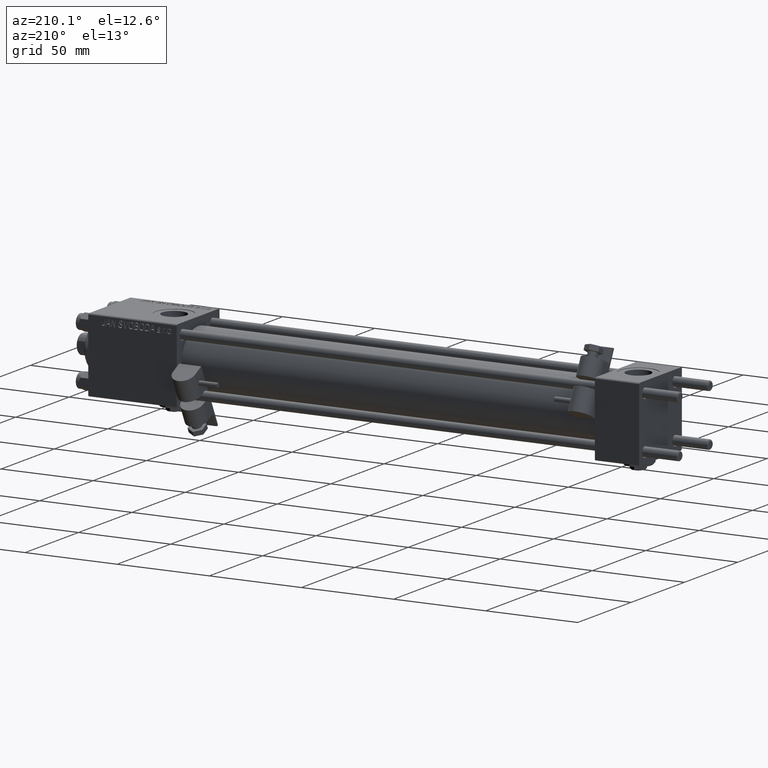
[diagram: clean part render]
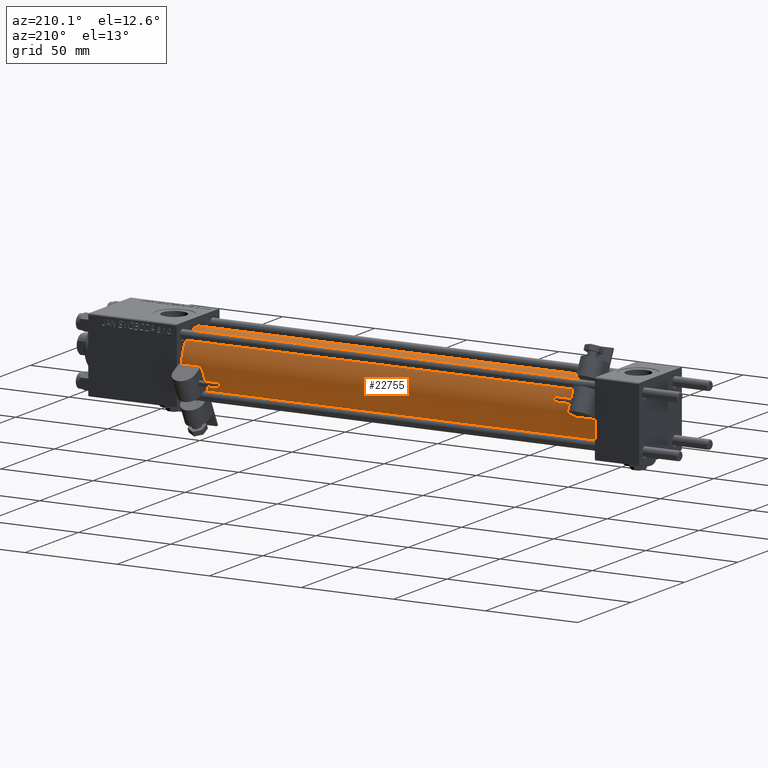
[diagram: same view with one face highlighted and labeled with its STEP entity id]
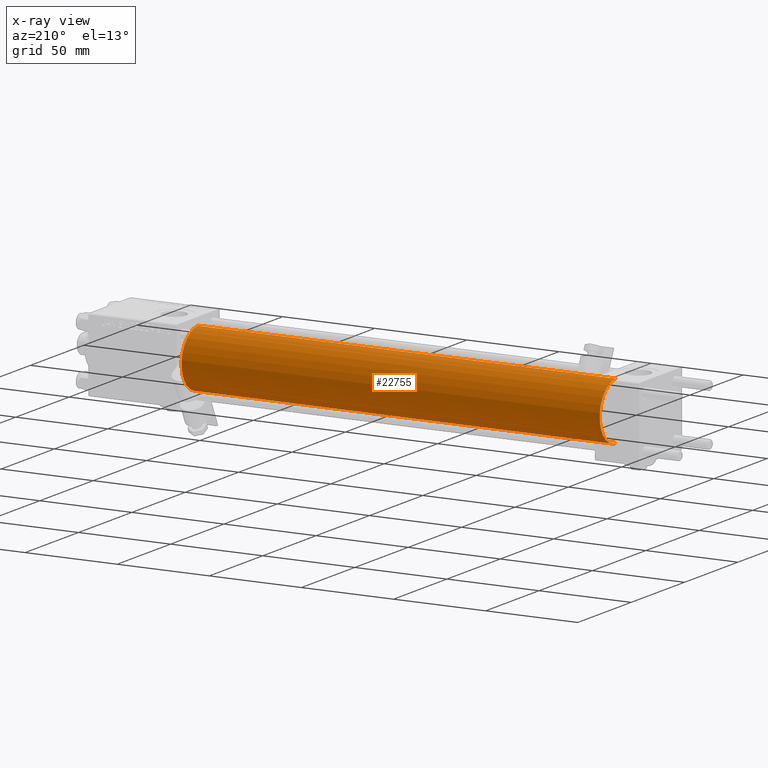
[diagram: x-ray of the same camera — body ghosted, the highlighted face saturated]
A machine part, auxiliary view. The second image highlights one B-rep face of the part: STEP entity #22755.
The next image is the same camera in x-ray: the body ghosted, the highlighted face saturated — about 0% of this face is hidden behind the body in this view.
In plain terms, the highlighted cylindrical surface (edge-blend (fillet) strip) has radius 15.5 mm, axis along (-1, -0, -0).
Its self-contained STEP definition (entity closure, byte-faithful):
#4973 = VERTEX_POINT ( 'NONE', #10799 ) ;
#8512 = VERTEX_POINT ( 'NONE', #28472 ) ;
#9592 = CARTESIAN_POINT ( 'NONE',  ( 251.0000000000000000, 0.000000000000000000, 15.50000000000000000 ) ) ;
#10280 = EDGE_CURVE ( 'NONE', #48518, #8512, #37662, .T. ) ;
#10799 = CARTESIAN_POINT ( 'NONE',  ( 23.99999999999999289, 1.898202538678397163E-15, -15.50000000000000000 ) ) ;
#10968 = DIRECTION ( 'NONE',  ( 1.000000000000000000, 0.000000000000000000, 0.000000000000000000 ) ) ;
#12340 = EDGE_CURVE ( 'NONE', #4973, #8512, #46383, .T. ) ;
#14206 = AXIS2_PLACEMENT_3D ( 'NONE', #17592, #46179, #22381 ) ;
#14679 = DIRECTION ( 'NONE',  ( 0.000000000000000000, 0.000000000000000000, -1.000000000000000000 ) ) ;
#14745 = EDGE_LOOP ( 'NONE', ( #49461, #51422, #20721, #27491 ) ) ;
#17353 = AXIS2_PLACEMENT_3D ( 'NONE', #26507, #10968, #34787 ) ;
#17592 = CARTESIAN_POINT ( 'NONE',  ( 251.0000000000000000, 0.000000000000000000, 0.000000000000000000 ) ) ;
#20721 = ORIENTED_EDGE ( 'NONE', *, *, #12340, .T. ) ;
#22143 = DIRECTION ( 'NONE',  ( -1.000000000000000000, -0.000000000000000000, -0.000000000000000000 ) ) ;
#22327 = LINE ( 'NONE', #34632, #50491 ) ;
#22381 = DIRECTION ( 'NONE',  ( 0.000000000000000000, 0.000000000000000000, 1.000000000000000000 ) ) ;
#22755 = ADVANCED_FACE ( 'NONE', ( #45919 ), #29890, .T. ) ;
#25951 = VERTEX_POINT ( 'NONE', #50168 ) ;
#26507 = CARTESIAN_POINT ( 'NONE',  ( 23.99999999999999289, 0.000000000000000000, 0.000000000000000000 ) ) ;
#27491 = ORIENTED_EDGE ( 'NONE', *, *, #10280, .F. ) ;
#28472 = CARTESIAN_POINT ( 'NONE',  ( 23.99999999999999289, 0.000000000000000000, 15.50000000000000000 ) ) ;
#29890 = CYLINDRICAL_SURFACE ( 'NONE', #14206, 15.50000000000000000 ) ;
#33525 = AXIS2_PLACEMENT_3D ( 'NONE', #39259, #35004, #14679 ) ;
#34632 = CARTESIAN_POINT ( 'NONE',  ( 251.0000000000000000, 1.898202538678397163E-15, -15.50000000000000000 ) ) ;
#34787 = DIRECTION ( 'NONE',  ( 0.000000000000000000, 0.000000000000000000, 1.000000000000000000 ) ) ;
#35004 = DIRECTION ( 'NONE',  ( 1.000000000000000000, 0.000000000000000000, 0.000000000000000000 ) ) ;
#37662 = LINE ( 'NONE', #9592, #51402 ) ;
#39259 = CARTESIAN_POINT ( 'NONE',  ( 251.0000000000000000, 0.000000000000000000, 0.000000000000000000 ) ) ;
#41206 = CIRCLE ( 'NONE', #33525, 15.50000000000000000 ) ;
#44955 = EDGE_CURVE ( 'NONE', #25951, #4973, #22327, .T. ) ;
#45177 = CARTESIAN_POINT ( 'NONE',  ( 251.0000000000000000, 0.000000000000000000, 15.50000000000000000 ) ) ;
#45919 = FACE_OUTER_BOUND ( 'NONE', #14745, .T. ) ;
#46179 = DIRECTION ( 'NONE',  ( -1.000000000000000000, -0.000000000000000000, -0.000000000000000000 ) ) ;
#46383 = CIRCLE ( 'NONE', #17353, 15.50000000000000000 ) ;
#46913 = DIRECTION ( 'NONE',  ( -1.000000000000000000, -0.000000000000000000, -0.000000000000000000 ) ) ;
#48518 = VERTEX_POINT ( 'NONE', #45177 ) ;
#49461 = ORIENTED_EDGE ( 'NONE', *, *, #50893, .F. ) ;
#50168 = CARTESIAN_POINT ( 'NONE',  ( 251.0000000000000000, 1.898202538678397163E-15, -15.50000000000000000 ) ) ;
#50491 = VECTOR ( 'NONE', #46913, 1000.000000000000000 ) ;
#50893 = EDGE_CURVE ( 'NONE', #25951, #48518, #41206, .T. ) ;
#51402 = VECTOR ( 'NONE', #22143, 1000.000000000000000 ) ;
#51422 = ORIENTED_EDGE ( 'NONE', *, *, #44955, .T. ) ;